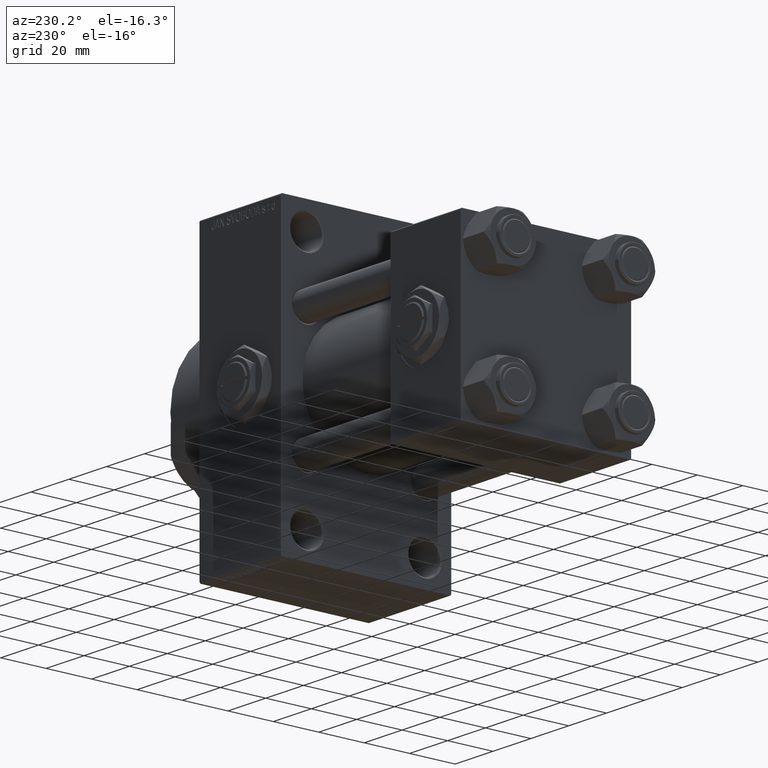
[diagram: clean part render]
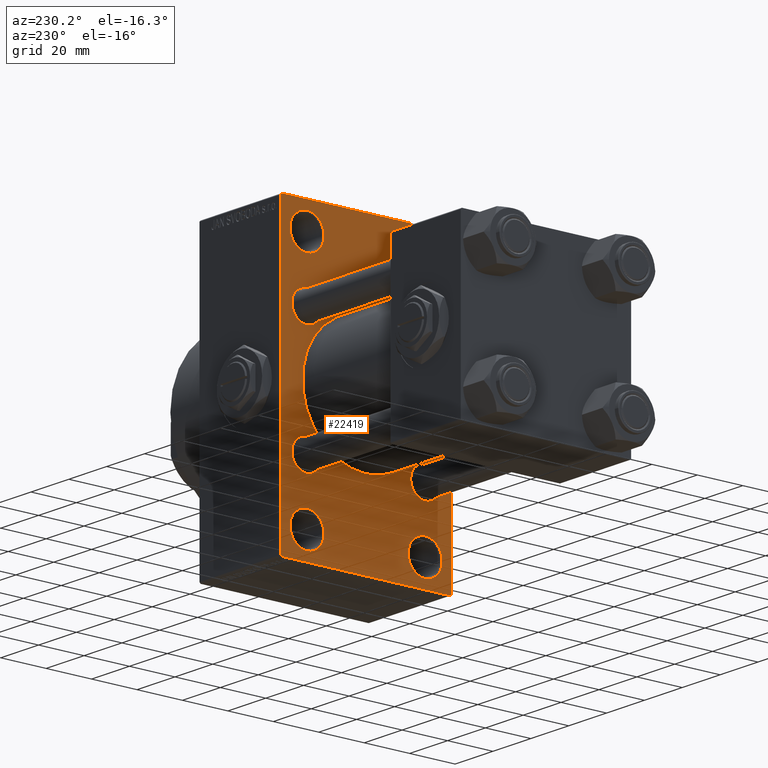
[diagram: same view with one face highlighted and labeled with its STEP entity id]
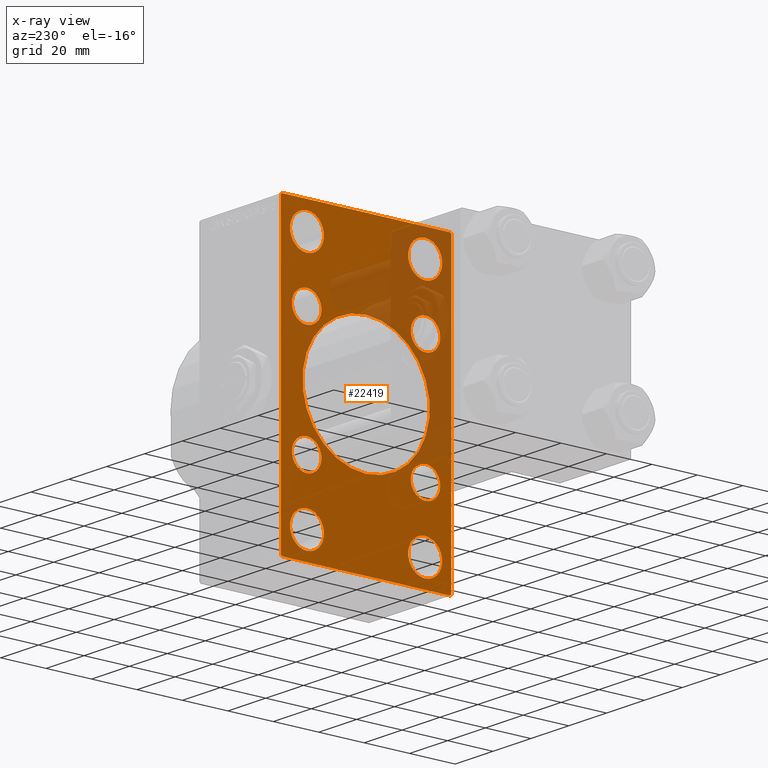
[diagram: x-ray of the same camera — body ghosted, the highlighted face saturated]
A machine part, auxiliary view. The second image highlights one B-rep face of the part: STEP entity #22419.
The next image is the same camera in x-ray: the body ghosted, the highlighted face saturated — about 28% of this face is hidden behind the body in this view.
In plain terms, the highlighted planar face has unit normal (-1, 0, 0).
Its self-contained STEP definition (entity closure, byte-faithful):
#275 = AXIS2_PLACEMENT_3D ( 'NONE', #32832, #48276, #32579 ) ;
#280 = ORIENTED_EDGE ( 'NONE', *, *, #13258, .T. ) ;
#632 = AXIS2_PLACEMENT_3D ( 'NONE', #21048, #17300, #9071 ) ;
#770 = VERTEX_POINT ( 'NONE', #7281 ) ;
#915 = VERTEX_POINT ( 'NONE', #26745 ) ;
#919 = DIRECTION ( 'NONE',  ( -1.000000000000000000, 0.000000000000000000, -0.000000000000000000 ) ) ;
#1154 = DIRECTION ( 'NONE',  ( 1.000000000000000000, -0.000000000000000000, 0.000000000000000000 ) ) ;
#1358 = DIRECTION ( 'NONE',  ( 0.000000000000000000, 0.000000000000000000, -1.000000000000000000 ) ) ;
#1563 = AXIS2_PLACEMENT_3D ( 'NONE', #29912, #7476, #41886 ) ;
#2642 = CARTESIAN_POINT ( 'NONE',  ( 95.00000000000000000, -25.99999999999999645, 59.99999999999997868 ) ) ;
#2759 = VERTEX_POINT ( 'NONE', #3125 ) ;
#3125 = CARTESIAN_POINT ( 'NONE',  ( 95.00000000000000000, -36.99999999999995737, 63.99999999999997158 ) ) ;
#3358 = EDGE_LOOP ( 'NONE', ( #8416, #44119 ) ) ;
#3790 = EDGE_CURVE ( 'NONE', #25343, #18823, #33503, .T. ) ;
#3840 = EDGE_CURVE ( 'NONE', #27440, #2759, #23805, .T. ) ;
#3862 = DIRECTION ( 'NONE',  ( 0.000000000000000000, 0.000000000000000000, 1.000000000000000000 ) ) ;
#3928 = FACE_BOUND ( 'NONE', #21942, .T. ) ;
#4331 = VERTEX_POINT ( 'NONE', #38949 ) ;
#4613 = VERTEX_POINT ( 'NONE', #14479 ) ;
#4726 = DIRECTION ( 'NONE',  ( 0.000000000000000000, 0.000000000000000000, 1.000000000000000000 ) ) ;
#4796 = DIRECTION ( 'NONE',  ( -0.000000000000000000, -0.7071067811865573427, -0.7071067811865378028 ) ) ;
#5118 = VECTOR ( 'NONE', #33074, 1000.000000000000000 ) ;
#5287 = EDGE_CURVE ( 'NONE', #20751, #31064, #15776, .T. ) ;
#5663 = VECTOR ( 'NONE', #45616, 1000.000000000000000 ) ;
#5796 = DIRECTION ( 'NONE',  ( 0.000000000000000000, 0.000000000000000000, 1.000000000000000000 ) ) ;
#5821 = CARTESIAN_POINT ( 'NONE',  ( 95.00000000000000000, 37.50000000000000000, 63.99999999999998579 ) ) ;
#5902 = VERTEX_POINT ( 'NONE', #21934 ) ;
#6366 = ORIENTED_EDGE ( 'NONE', *, *, #41604, .T. ) ;
#6696 = AXIS2_PLACEMENT_3D ( 'NONE', #45234, #42008, #3862 ) ;
#7281 = CARTESIAN_POINT ( 'NONE',  ( 95.00000000000000000, 26.14999999999999858, -32.65000000000001279 ) ) ;
#7457 = AXIS2_PLACEMENT_3D ( 'NONE', #13132, #28590, #32346 ) ;
#7476 = DIRECTION ( 'NONE',  ( 1.000000000000000000, -0.000000000000000000, 0.000000000000000000 ) ) ;
#7518 = AXIS2_PLACEMENT_3D ( 'NONE', #11575, #34040, #31022 ) ;
#7596 = DIRECTION ( 'NONE',  ( 1.000000000000000000, -0.000000000000000000, 0.000000000000000000 ) ) ;
#7674 = FACE_BOUND ( 'NONE', #40166, .T. ) ;
#8239 = CIRCLE ( 'NONE', #7457, 6.500000000000008882 ) ;
#8397 = AXIS2_PLACEMENT_3D ( 'NONE', #46356, #23687, #19936 ) ;
#8400 = PLANE ( 'NONE',  #32442 ) ;
#8416 = ORIENTED_EDGE ( 'NONE', *, *, #45351, .T. ) ;
#9071 = DIRECTION ( 'NONE',  ( 0.000000000000000000, 0.000000000000000000, 1.000000000000000000 ) ) ;
#9167 = EDGE_LOOP ( 'NONE', ( #280, #43618, #38157, #45623, #11760, #18917, #29632, #17212 ) ) ;
#9169 = AXIS2_PLACEMENT_3D ( 'NONE', #39676, #10228, #47392 ) ;
#9210 = CIRCLE ( 'NONE', #8397, 7.499999999999978684 ) ;
#9346 = CARTESIAN_POINT ( 'NONE',  ( 95.00000000000000000, 26.00000000000000000, -45.00000000000001421 ) ) ;
#9793 = EDGE_CURVE ( 'NONE', #41614, #5902, #15304, .T. ) ;
#10042 = EDGE_LOOP ( 'NONE', ( #17671, #26988 ) ) ;
#10228 = DIRECTION ( 'NONE',  ( 1.000000000000000000, 0.000000000000000000, 0.000000000000000000 ) ) ;
#10420 = VECTOR ( 'NONE', #35513, 1000.000000000000000 ) ;
#10466 = ORIENTED_EDGE ( 'NONE', *, *, #31595, .T. ) ;
#10559 = AXIS2_PLACEMENT_3D ( 'NONE', #18561, #21808, #41742 ) ;
#10927 = ORIENTED_EDGE ( 'NONE', *, *, #12936, .T. ) ;
#11393 = FACE_OUTER_BOUND ( 'NONE', #9167, .T. ) ;
#11568 = DIRECTION ( 'NONE',  ( 0.000000000000000000, 0.000000000000000000, 1.000000000000000000 ) ) ;
#11575 = CARTESIAN_POINT ( 'NONE',  ( 95.00000000000000000, -26.14999999999999147, 26.15000000000000924 ) ) ;
#11683 = DIRECTION ( 'NONE',  ( 0.000000000000000000, 0.000000000000000000, 1.000000000000000000 ) ) ;
#11752 = CARTESIAN_POINT ( 'NONE',  ( 95.00000000000000000, 37.49999999999999289, -63.50000000000001421 ) ) ;
#11760 = ORIENTED_EDGE ( 'NONE', *, *, #15606, .F. ) ;
#11908 = EDGE_CURVE ( 'NONE', #16862, #39591, #33683, .T. ) ;
#12082 = DIRECTION ( 'NONE',  ( 1.000000000000000000, 0.000000000000000000, 0.000000000000000000 ) ) ;
#12336 = CIRCLE ( 'NONE', #9169, 28.00000000000000000 ) ;
#12589 = EDGE_CURVE ( 'NONE', #4613, #27530, #21752, .T. ) ;
#12781 = VERTEX_POINT ( 'NONE', #15368 ) ;
#12936 = EDGE_CURVE ( 'NONE', #4331, #16052, #44838, .T. ) ;
#13132 = CARTESIAN_POINT ( 'NONE',  ( 95.00000000000000000, 26.14999999999999858, 26.15000000000000213 ) ) ;
#13205 = DIRECTION ( 'NONE',  ( 0.000000000000000000, -1.000000000000000000, -1.850371707708594563E-16 ) ) ;
#13258 = EDGE_CURVE ( 'NONE', #31064, #48686, #16706, .T. ) ;
#13561 = CARTESIAN_POINT ( 'NONE',  ( 95.00000000000000000, 26.14999999999999858, 26.15000000000000213 ) ) ;
#13931 = EDGE_CURVE ( 'NONE', #47006, #770, #46476, .T. ) ;
#14479 = CARTESIAN_POINT ( 'NONE',  ( 95.00000000000000000, -25.99999999999999645, -59.99999999999997158 ) ) ;
#14917 = CIRCLE ( 'NONE', #35632, 7.499999999999978684 ) ;
#15304 = CIRCLE ( 'NONE', #36799, 6.500000000000008882 ) ;
#15368 = CARTESIAN_POINT ( 'NONE',  ( 95.00000000000000000, 37.50000000000000000, 63.49999999999998579 ) ) ;
#15484 = CARTESIAN_POINT ( 'NONE',  ( 95.00000000000000000, 8.269258236473776482E-16, -28.00000000000000000 ) ) ;
#15485 = EDGE_LOOP ( 'NONE', ( #10927, #32120 ) ) ;
#15606 = EDGE_CURVE ( 'NONE', #915, #2759, #29565, .T. ) ;
#15678 = CARTESIAN_POINT ( 'NONE',  ( 95.00000000000000000, 26.00000000000000000, -59.99999999999997158 ) ) ;
#15699 = LINE ( 'NONE', #30670, #23439 ) ;
#15741 = CIRCLE ( 'NONE', #632, 7.499999999999978684 ) ;
#15776 = LINE ( 'NONE', #38223, #48639 ) ;
#15902 = DIRECTION ( 'NONE',  ( 1.000000000000000000, -0.000000000000000000, 0.000000000000000000 ) ) ;
#15916 = ORIENTED_EDGE ( 'NONE', *, *, #11908, .T. ) ;
#16052 = VERTEX_POINT ( 'NONE', #38477 ) ;
#16120 = FACE_BOUND ( 'NONE', #3358, .T. ) ;
#16593 = CARTESIAN_POINT ( 'NONE',  ( 95.00000000000000000, -25.99999999999999645, 52.50000000000000000 ) ) ;
#16706 = LINE ( 'NONE', #36397, #24957 ) ;
#16862 = VERTEX_POINT ( 'NONE', #18809 ) ;
#16988 = CIRCLE ( 'NONE', #30562, 7.499999999999978684 ) ;
#17212 = ORIENTED_EDGE ( 'NONE', *, *, #5287, .T. ) ;
#17300 = DIRECTION ( 'NONE',  ( 1.000000000000000000, -0.000000000000000000, 0.000000000000000000 ) ) ;
#17484 = DIRECTION ( 'NONE',  ( 1.000000000000000000, -0.000000000000000000, 0.000000000000000000 ) ) ;
#17671 = ORIENTED_EDGE ( 'NONE', *, *, #13931, .T. ) ;
#17681 = EDGE_CURVE ( 'NONE', #18823, #25343, #12336, .T. ) ;
#17912 = EDGE_CURVE ( 'NONE', #28134, #45042, #9210, .T. ) ;
#17995 = CARTESIAN_POINT ( 'NONE',  ( 95.00000000000000000, 26.00000000000000000, -52.49999999999999289 ) ) ;
#18096 = ORIENTED_EDGE ( 'NONE', *, *, #44518, .T. ) ;
#18561 = CARTESIAN_POINT ( 'NONE',  ( 95.00000000000000000, -26.14999999999999147, 26.15000000000000924 ) ) ;
#18713 = DIRECTION ( 'NONE',  ( 0.000000000000000000, -0.7071067811865574537, 0.7071067811865376918 ) ) ;
#18809 = CARTESIAN_POINT ( 'NONE',  ( 95.00000000000000000, -26.14999999999999147, 19.65000000000000213 ) ) ;
#18823 = VERTEX_POINT ( 'NONE', #25403 ) ;
#18917 = ORIENTED_EDGE ( 'NONE', *, *, #32339, .T. ) ;
#19294 = CARTESIAN_POINT ( 'NONE',  ( 95.00000000000000000, -37.49999999999999289, 63.49999999999994316 ) ) ;
#19471 = CIRCLE ( 'NONE', #48085, 6.500000000000008882 ) ;
#19477 = EDGE_LOOP ( 'NONE', ( #6366, #21176 ) ) ;
#19936 = DIRECTION ( 'NONE',  ( 0.000000000000000000, 0.000000000000000000, 1.000000000000000000 ) ) ;
#20428 = CARTESIAN_POINT ( 'NONE',  ( 95.00000000000000000, -25.99999999999999645, 52.50000000000000000 ) ) ;
#20751 = VERTEX_POINT ( 'NONE', #11752 ) ;
#21048 = CARTESIAN_POINT ( 'NONE',  ( 95.00000000000000000, 26.00000000000000000, 52.49999999999999289 ) ) ;
#21176 = ORIENTED_EDGE ( 'NONE', *, *, #41932, .T. ) ;
#21239 = DIRECTION ( 'NONE',  ( 0.000000000000000000, 0.000000000000000000, 1.000000000000000000 ) ) ;
#21533 = VERTEX_POINT ( 'NONE', #32307 ) ;
#21717 = CARTESIAN_POINT ( 'NONE',  ( 95.00000000000000000, 26.14999999999999858, -19.64999999999999503 ) ) ;
#21752 = CIRCLE ( 'NONE', #275, 7.499999999999978684 ) ;
#21791 = AXIS2_PLACEMENT_3D ( 'NONE', #13561, #44730, #40505 ) ;
#21808 = DIRECTION ( 'NONE',  ( 1.000000000000000000, -0.000000000000000000, 0.000000000000000000 ) ) ;
#21934 = CARTESIAN_POINT ( 'NONE',  ( 95.00000000000000000, -26.14999999999999147, -32.65000000000001990 ) ) ;
#21942 = EDGE_LOOP ( 'NONE', ( #45072, #28100 ) ) ;
#21963 = EDGE_LOOP ( 'NONE', ( #22402, #31989 ) ) ;
#22402 = ORIENTED_EDGE ( 'NONE', *, *, #17912, .T. ) ;
#22416 = EDGE_LOOP ( 'NONE', ( #29883, #36550 ) ) ;
#22419 = ADVANCED_FACE ( 'NONE', ( #16120, #31340, #49277, #41835, #7674, #46287, #35062, #3928, #30610, #11393 ), #8400, .T. ) ;
#22763 = VERTEX_POINT ( 'NONE', #2642 ) ;
#22925 = EDGE_CURVE ( 'NONE', #45042, #28134, #15741, .T. ) ;
#23280 = EDGE_CURVE ( 'NONE', #21533, #22763, #14917, .T. ) ;
#23332 = CARTESIAN_POINT ( 'NONE',  ( 95.00000000000000000, -2.602085213965210642E-15, 0.000000000000000000 ) ) ;
#23379 = DIRECTION ( 'NONE',  ( -0.000000000000000000, 0.000000000000000000, 1.000000000000000000 ) ) ;
#23439 = VECTOR ( 'NONE', #18713, 999.9999999999998863 ) ;
#23687 = DIRECTION ( 'NONE',  ( 1.000000000000000000, -0.000000000000000000, 0.000000000000000000 ) ) ;
#23790 = VECTOR ( 'NONE', #43584, 1000.000000000000000 ) ;
#23805 = LINE ( 'NONE', #38282, #10420 ) ;
#24957 = VECTOR ( 'NONE', #13205, 1000.000000000000000 ) ;
#25343 = VERTEX_POINT ( 'NONE', #15484 ) ;
#25403 = CARTESIAN_POINT ( 'NONE',  ( 95.00000000000000000, -2.602085213965210642E-15, 28.00000000000000000 ) ) ;
#25715 = CARTESIAN_POINT ( 'NONE',  ( 95.00000000000000000, -26.14999999999999147, -19.65000000000000213 ) ) ;
#26284 = CARTESIAN_POINT ( 'NONE',  ( 95.00000000000000000, -25.99999999999999645, -52.49999999999999289 ) ) ;
#26516 = EDGE_LOOP ( 'NONE', ( #18096, #36288 ) ) ;
#26544 = VERTEX_POINT ( 'NONE', #27435 ) ;
#26745 = CARTESIAN_POINT ( 'NONE',  ( 95.00000000000000000, 36.99999999999997158, 63.99999999999998579 ) ) ;
#26988 = ORIENTED_EDGE ( 'NONE', *, *, #43104, .T. ) ;
#27359 = CIRCLE ( 'NONE', #48827, 7.499999999999978684 ) ;
#27435 = CARTESIAN_POINT ( 'NONE',  ( 95.00000000000000000, -37.49999999999999289, -63.49999999999997158 ) ) ;
#27440 = VERTEX_POINT ( 'NONE', #19294 ) ;
#27468 = CARTESIAN_POINT ( 'NONE',  ( 95.00000000000000000, 26.00000000000000000, 45.00000000000001421 ) ) ;
#27530 = VERTEX_POINT ( 'NONE', #30496 ) ;
#27808 = DIRECTION ( 'NONE',  ( 1.000000000000000000, -0.000000000000000000, 0.000000000000000000 ) ) ;
#28040 = CARTESIAN_POINT ( 'NONE',  ( 95.00000000000000000, 26.00000000000000000, 59.99999999999997158 ) ) ;
#28100 = ORIENTED_EDGE ( 'NONE', *, *, #34586, .T. ) ;
#28134 = VERTEX_POINT ( 'NONE', #28040 ) ;
#28590 = DIRECTION ( 'NONE',  ( 1.000000000000000000, -0.000000000000000000, 0.000000000000000000 ) ) ;
#29010 = CIRCLE ( 'NONE', #7518, 6.500000000000008882 ) ;
#29020 = CIRCLE ( 'NONE', #43248, 7.499999999999978684 ) ;
#29565 = LINE ( 'NONE', #33561, #5118 ) ;
#29632 = ORIENTED_EDGE ( 'NONE', *, *, #35409, .T. ) ;
#29666 = VERTEX_POINT ( 'NONE', #15678 ) ;
#29767 = AXIS2_PLACEMENT_3D ( 'NONE', #42352, #15902, #35094 ) ;
#29883 = ORIENTED_EDGE ( 'NONE', *, *, #17681, .T. ) ;
#29912 = CARTESIAN_POINT ( 'NONE',  ( 95.00000000000000000, -26.14999999999999147, -26.15000000000000924 ) ) ;
#30159 = LINE ( 'NONE', #37906, #5663 ) ;
#30496 = CARTESIAN_POINT ( 'NONE',  ( 95.00000000000000000, -25.99999999999999645, -45.00000000000001421 ) ) ;
#30562 = AXIS2_PLACEMENT_3D ( 'NONE', #16593, #1154, #31077 ) ;
#30610 = FACE_BOUND ( 'NONE', #22416, .T. ) ;
#30670 = CARTESIAN_POINT ( 'NONE',  ( 95.00000000000000000, -50.49999999999945999, -50.50000000000086686 ) ) ;
#31022 = DIRECTION ( 'NONE',  ( 0.000000000000000000, 0.000000000000000000, 1.000000000000000000 ) ) ;
#31064 = VERTEX_POINT ( 'NONE', #46104 ) ;
#31070 = EDGE_CURVE ( 'NONE', #48686, #26544, #15699, .T. ) ;
#31077 = DIRECTION ( 'NONE',  ( 0.000000000000000000, 0.000000000000000000, 1.000000000000000000 ) ) ;
#31338 = CIRCLE ( 'NONE', #29767, 7.499999999999978684 ) ;
#31340 = FACE_BOUND ( 'NONE', #26516, .T. ) ;
#31413 = DIRECTION ( 'NONE',  ( 1.000000000000000000, -0.000000000000000000, 0.000000000000000000 ) ) ;
#31595 = EDGE_CURVE ( 'NONE', #39591, #16862, #29010, .T. ) ;
#31989 = ORIENTED_EDGE ( 'NONE', *, *, #22925, .T. ) ;
#32120 = ORIENTED_EDGE ( 'NONE', *, *, #42060, .T. ) ;
#32307 = CARTESIAN_POINT ( 'NONE',  ( 95.00000000000000000, -25.99999999999999645, 45.00000000000002132 ) ) ;
#32339 = EDGE_CURVE ( 'NONE', #915, #12781, #35848, .T. ) ;
#32346 = DIRECTION ( 'NONE',  ( 0.000000000000000000, 0.000000000000000000, 1.000000000000000000 ) ) ;
#32442 = AXIS2_PLACEMENT_3D ( 'NONE', #42800, #919, #23379 ) ;
#32579 = DIRECTION ( 'NONE',  ( 0.000000000000000000, 0.000000000000000000, 1.000000000000000000 ) ) ;
#32832 = CARTESIAN_POINT ( 'NONE',  ( 95.00000000000000000, -25.99999999999999645, -52.49999999999999289 ) ) ;
#33074 = DIRECTION ( 'NONE',  ( 0.000000000000000000, -1.000000000000000000, -1.850371707708594563E-16 ) ) ;
#33503 = CIRCLE ( 'NONE', #43851, 28.00000000000000000 ) ;
#33561 = CARTESIAN_POINT ( 'NONE',  ( 95.00000000000000000, 37.50000000000000000, 63.99999999999998579 ) ) ;
#33683 = CIRCLE ( 'NONE', #10559, 6.500000000000008882 ) ;
#34040 = DIRECTION ( 'NONE',  ( 1.000000000000000000, -0.000000000000000000, 0.000000000000000000 ) ) ;
#34586 = EDGE_CURVE ( 'NONE', #5902, #41614, #42954, .T. ) ;
#35062 = FACE_BOUND ( 'NONE', #10042, .T. ) ;
#35094 = DIRECTION ( 'NONE',  ( 0.000000000000000000, 0.000000000000000000, 1.000000000000000000 ) ) ;
#35409 = EDGE_CURVE ( 'NONE', #12781, #20751, #39977, .T. ) ;
#35513 = DIRECTION ( 'NONE',  ( -0.000000000000000000, 0.7071067811865524577, 0.7071067811865426878 ) ) ;
#35632 = AXIS2_PLACEMENT_3D ( 'NONE', #20428, #31413, #4726 ) ;
#35848 = LINE ( 'NONE', #44081, #23790 ) ;
#36217 = DIRECTION ( 'NONE',  ( 1.000000000000000000, -0.000000000000000000, 0.000000000000000000 ) ) ;
#36288 = ORIENTED_EDGE ( 'NONE', *, *, #12589, .T. ) ;
#36397 = CARTESIAN_POINT ( 'NONE',  ( 95.00000000000000000, 37.49999999999999289, -64.00000000000000000 ) ) ;
#36550 = ORIENTED_EDGE ( 'NONE', *, *, #3790, .T. ) ;
#36799 = AXIS2_PLACEMENT_3D ( 'NONE', #39952, #36217, #5796 ) ;
#37906 = CARTESIAN_POINT ( 'NONE',  ( 95.00000000000000000, -37.49999999999999289, 63.99999999999997158 ) ) ;
#38157 = ORIENTED_EDGE ( 'NONE', *, *, #46156, .F. ) ;
#38223 = CARTESIAN_POINT ( 'NONE',  ( 95.00000000000000000, 50.49999999999948841, -50.50000000000088107 ) ) ;
#38282 = CARTESIAN_POINT ( 'NONE',  ( 95.00000000000000000, -50.49999999999970868, 50.50000000000040501 ) ) ;
#38477 = CARTESIAN_POINT ( 'NONE',  ( 95.00000000000000000, 26.14999999999999858, 19.64999999999999147 ) ) ;
#38949 = CARTESIAN_POINT ( 'NONE',  ( 95.00000000000000000, 26.14999999999999858, 32.65000000000001990 ) ) ;
#39591 = VERTEX_POINT ( 'NONE', #45001 ) ;
#39676 = CARTESIAN_POINT ( 'NONE',  ( 95.00000000000000000, -2.602085213965210642E-15, 0.000000000000000000 ) ) ;
#39704 = CARTESIAN_POINT ( 'NONE',  ( 95.00000000000000000, -36.99999999999993605, -64.00000000000001421 ) ) ;
#39952 = CARTESIAN_POINT ( 'NONE',  ( 95.00000000000000000, -26.14999999999999147, -26.15000000000000924 ) ) ;
#39977 = LINE ( 'NONE', #5821, #41432 ) ;
#40166 = EDGE_LOOP ( 'NONE', ( #10466, #15916 ) ) ;
#40505 = DIRECTION ( 'NONE',  ( 0.000000000000000000, 0.000000000000000000, 1.000000000000000000 ) ) ;
#41432 = VECTOR ( 'NONE', #42972, 1000.000000000000000 ) ;
#41604 = EDGE_CURVE ( 'NONE', #43202, #29666, #27359, .T. ) ;
#41614 = VERTEX_POINT ( 'NONE', #25715 ) ;
#41742 = DIRECTION ( 'NONE',  ( 0.000000000000000000, 0.000000000000000000, 1.000000000000000000 ) ) ;
#41835 = FACE_BOUND ( 'NONE', #21963, .T. ) ;
#41874 = CARTESIAN_POINT ( 'NONE',  ( 95.00000000000000000, 26.14999999999999858, -26.15000000000000213 ) ) ;
#41886 = DIRECTION ( 'NONE',  ( 0.000000000000000000, 0.000000000000000000, 1.000000000000000000 ) ) ;
#41932 = EDGE_CURVE ( 'NONE', #29666, #43202, #31338, .T. ) ;
#42008 = DIRECTION ( 'NONE',  ( 1.000000000000000000, -0.000000000000000000, 0.000000000000000000 ) ) ;
#42060 = EDGE_CURVE ( 'NONE', #16052, #4331, #8239, .T. ) ;
#42352 = CARTESIAN_POINT ( 'NONE',  ( 95.00000000000000000, 26.00000000000000000, -52.49999999999999289 ) ) ;
#42800 = CARTESIAN_POINT ( 'NONE',  ( 95.00000000000000000, 0.000000000000000000, 0.000000000000000000 ) ) ;
#42954 = CIRCLE ( 'NONE', #1563, 6.500000000000008882 ) ;
#42972 = DIRECTION ( 'NONE',  ( 0.000000000000000000, -5.421010862427522170E-17, -1.000000000000000000 ) ) ;
#43104 = EDGE_CURVE ( 'NONE', #770, #47006, #19471, .T. ) ;
#43202 = VERTEX_POINT ( 'NONE', #9346 ) ;
#43248 = AXIS2_PLACEMENT_3D ( 'NONE', #26284, #7596, #11568 ) ;
#43584 = DIRECTION ( 'NONE',  ( 0.000000000000000000, 0.7071067811865672237, -0.7071067811865279218 ) ) ;
#43618 = ORIENTED_EDGE ( 'NONE', *, *, #31070, .T. ) ;
#43851 = AXIS2_PLACEMENT_3D ( 'NONE', #23332, #12082, #1358 ) ;
#44081 = CARTESIAN_POINT ( 'NONE',  ( 95.00000000000000000, 50.49999999999894840, 50.50000000000176215 ) ) ;
#44119 = ORIENTED_EDGE ( 'NONE', *, *, #23280, .T. ) ;
#44518 = EDGE_CURVE ( 'NONE', #27530, #4613, #29020, .T. ) ;
#44730 = DIRECTION ( 'NONE',  ( 1.000000000000000000, -0.000000000000000000, 0.000000000000000000 ) ) ;
#44838 = CIRCLE ( 'NONE', #21791, 6.500000000000008882 ) ;
#45001 = CARTESIAN_POINT ( 'NONE',  ( 95.00000000000000000, -26.14999999999999147, 32.65000000000001990 ) ) ;
#45042 = VERTEX_POINT ( 'NONE', #27468 ) ;
#45072 = ORIENTED_EDGE ( 'NONE', *, *, #9793, .T. ) ;
#45234 = CARTESIAN_POINT ( 'NONE',  ( 95.00000000000000000, 26.14999999999999858, -26.15000000000000213 ) ) ;
#45351 = EDGE_CURVE ( 'NONE', #22763, #21533, #16988, .T. ) ;
#45616 = DIRECTION ( 'NONE',  ( 0.000000000000000000, 0.000000000000000000, -1.000000000000000000 ) ) ;
#45623 = ORIENTED_EDGE ( 'NONE', *, *, #3840, .T. ) ;
#46104 = CARTESIAN_POINT ( 'NONE',  ( 95.00000000000000000, 36.99999999999999289, -64.00000000000000000 ) ) ;
#46156 = EDGE_CURVE ( 'NONE', #27440, #26544, #30159, .T. ) ;
#46287 = FACE_BOUND ( 'NONE', #15485, .T. ) ;
#46356 = CARTESIAN_POINT ( 'NONE',  ( 95.00000000000000000, 26.00000000000000000, 52.49999999999999289 ) ) ;
#46476 = CIRCLE ( 'NONE', #6696, 6.500000000000008882 ) ;
#47006 = VERTEX_POINT ( 'NONE', #21717 ) ;
#47392 = DIRECTION ( 'NONE',  ( 0.000000000000000000, 0.000000000000000000, -1.000000000000000000 ) ) ;
#48085 = AXIS2_PLACEMENT_3D ( 'NONE', #41874, #27808, #11683 ) ;
#48276 = DIRECTION ( 'NONE',  ( 1.000000000000000000, -0.000000000000000000, 0.000000000000000000 ) ) ;
#48639 = VECTOR ( 'NONE', #4796, 1000.000000000000000 ) ;
#48686 = VERTEX_POINT ( 'NONE', #39704 ) ;
#48827 = AXIS2_PLACEMENT_3D ( 'NONE', #17995, #17484, #21239 ) ;
#49277 = FACE_BOUND ( 'NONE', #19477, .T. ) ;